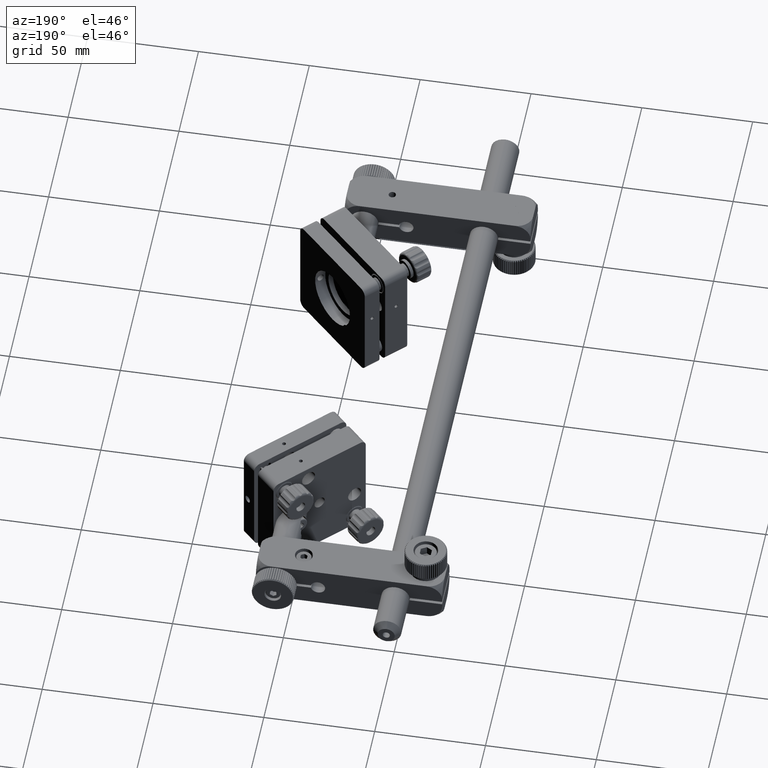
[diagram: clean part render]
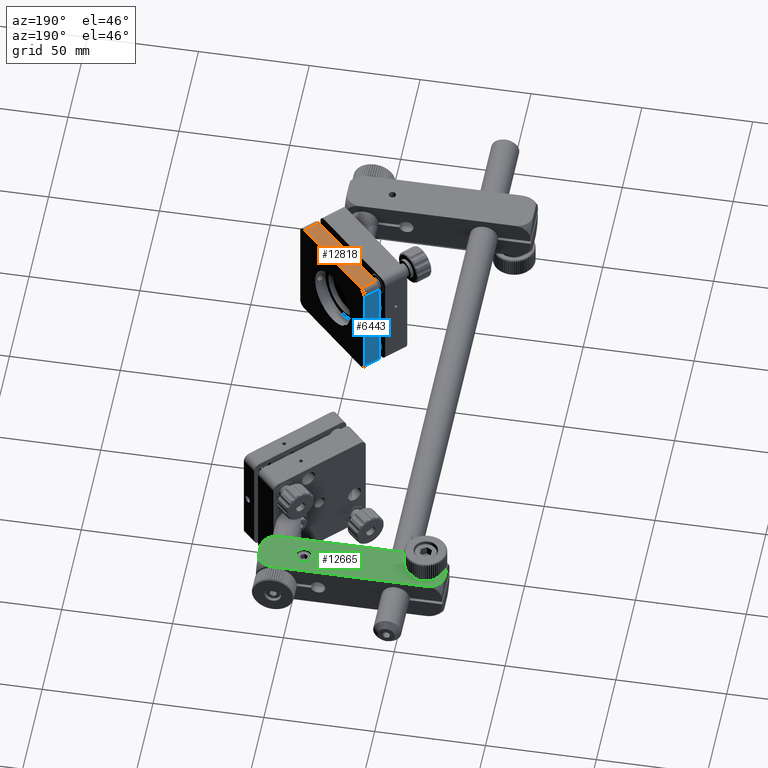
[diagram: same view with three faces highlighted in distinct colors, each labeled with its STEP entity id]
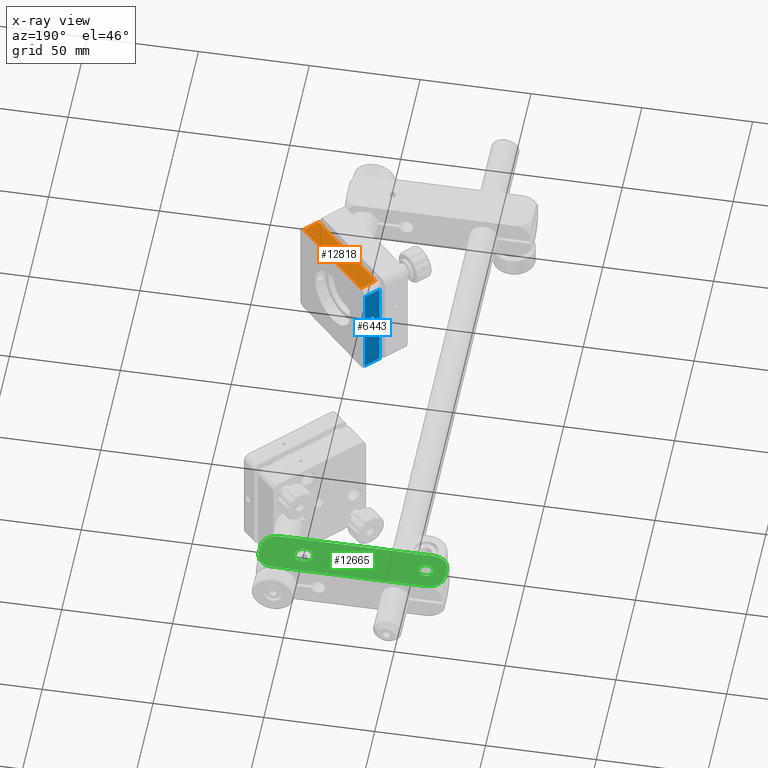
[diagram: x-ray of the same camera — body ghosted, the three highlighted faces saturated]
A machine part, auxiliary view with three faces highlighted in distinct colors.
The next image is the same camera in x-ray (body ghosted, the three faces saturated) — at least one of them is partly hidden behind the body in this view.
Their STEP definitions:

[orange] entity #12818 — the highlighted planar face has unit normal (-0, -0, 1).
#633 = CARTESIAN_POINT ( 'NONE',  ( 75.19572218962657928, 103.9577228555257307, 25.00000000000043698 ) ) ;
#3903 = VECTOR ( 'NONE', #49244, 1000.000000000000000 ) ;
#5757 = DIRECTION ( 'NONE',  ( -0.7071067811865522357, 0.7071067811865429098, 2.642727309353121971E-16 ) ) ;
#10299 = DIRECTION ( 'NONE',  ( -1.771697125267998039E-17, -3.914550515067769939E-16, 1.000000000000000000 ) ) ;
#11944 = VECTOR ( 'NONE', #62784, 1000.000000000000000 ) ;
#12818 = ADVANCED_FACE ( 'NONE', ( #48357 ), #62748, .T. ) ;
#13553 = VERTEX_POINT ( 'NONE', #49929 ) ;
#16231 = VECTOR ( 'NONE', #5757, 1000.000000000000000 ) ;
#18662 = CARTESIAN_POINT ( 'NONE',  ( 75.19572218962657928, 103.9577228555257307, 25.00000000000043698 ) ) ;
#20908 = EDGE_LOOP ( 'NONE', ( #35915, #30488, #62858, #43851 ) ) ;
#22166 = CARTESIAN_POINT ( 'NONE',  ( 75.19572218962657928, 103.9577228555257307, 25.00000000000043698 ) ) ;
#22609 = LINE ( 'NONE', #34031, #11944 ) ;
#28098 = LINE ( 'NONE', #32258, #51266 ) ;
#30488 = ORIENTED_EDGE ( 'NONE', *, *, #59668, .F. ) ;
#31096 = CARTESIAN_POINT ( 'NONE',  ( 44.08302381741828668, 135.0704212277335898, 25.00000000000046541 ) ) ;
#32258 = CARTESIAN_POINT ( 'NONE',  ( 75.19572218962657928, 103.9577228555257307, 25.00000000000043698 ) ) ;
#32473 = EDGE_CURVE ( 'NONE', #58717, #53738, #59758, .T. ) ;
#34031 = CARTESIAN_POINT ( 'NONE',  ( 44.08302381741828668, 135.0704212277335898, 25.00000000000046541 ) ) ;
#34866 = CARTESIAN_POINT ( 'NONE',  ( 69.53886794013429551, 98.30086860603333321, 25.00000000000043343 ) ) ;
#35915 = ORIENTED_EDGE ( 'NONE', *, *, #47294, .F. ) ;
#43567 = DIRECTION ( 'NONE',  ( -0.7071067811865522357, 0.7071067811865429098, 2.642727309353121971E-16 ) ) ;
#43851 = ORIENTED_EDGE ( 'NONE', *, *, #46413, .T. ) ;
#46413 = EDGE_CURVE ( 'NONE', #53738, #13553, #22609, .T. ) ;
#47294 = EDGE_CURVE ( 'NONE', #49089, #13553, #59476, .T. ) ;
#48135 = CARTESIAN_POINT ( 'NONE',  ( 69.53886794013429551, 98.30086860603333321, 25.00000000000043343 ) ) ;
#48357 = FACE_OUTER_BOUND ( 'NONE', #20908, .T. ) ;
#49089 = VERTEX_POINT ( 'NONE', #48135 ) ;
#49244 = DIRECTION ( 'NONE',  ( -0.7071067811865522357, 0.7071067811865429098, 2.642727309353121971E-16 ) ) ;
#49929 = CARTESIAN_POINT ( 'NONE',  ( 38.42616956792592475, 129.4135669782412492, 25.00000000000045119 ) ) ;
#51266 = VECTOR ( 'NONE', #52339, 1000.000000000000000 ) ;
#52339 = DIRECTION ( 'NONE',  ( -0.7071067811865445751, -0.7071067811865504593, -5.150960024595232098E-16 ) ) ;
#53738 = VERTEX_POINT ( 'NONE', #31096 ) ;
#58717 = VERTEX_POINT ( 'NONE', #22166 ) ;
#59476 = LINE ( 'NONE', #34866, #3903 ) ;
#59668 = EDGE_CURVE ( 'NONE', #58717, #49089, #28098, .T. ) ;
#59758 = LINE ( 'NONE', #633, #16231 ) ;
#61308 = AXIS2_PLACEMENT_3D ( 'NONE', #18662, #10299, #43567 ) ;
#62748 = PLANE ( 'NONE',  #61308 ) ;
#62784 = DIRECTION ( 'NONE',  ( -0.7071067811865445751, -0.7071067811865504593, -5.150960024595232098E-16 ) ) ;
#62858 = ORIENTED_EDGE ( 'NONE', *, *, #32473, .T. ) ;

[blue] entity #6443 — the highlighted planar face has unit normal (-0.7071, 0.7071, -0).
#119 = LINE ( 'NONE', #59217, #5952 ) ;
#176 = CARTESIAN_POINT ( 'NONE',  ( 41.96170347385857724, 137.1917415712933064, 22.00000000000041567 ) ) ;
#350 = CARTESIAN_POINT ( 'NONE',  ( 36.30484922436628636, 131.5348873218008521, 22.00000000000041211 ) ) ;
#792 = ORIENTED_EDGE ( 'NONE', *, *, #49133, .T. ) ;
#1411 = CARTESIAN_POINT ( 'NONE',  ( 36.30484922436627926, 131.5348873218008521, -21.99999999999959144 ) ) ;
#3682 = CARTESIAN_POINT ( 'NONE',  ( 41.96170347385858435, 137.1917415712933064, -21.99999999999958789 ) ) ;
#5952 = VECTOR ( 'NONE', #53462, 1000.000000000000000 ) ;
#6012 = FACE_OUTER_BOUND ( 'NONE', #16805, .T. ) ;
#6443 = ADVANCED_FACE ( 'NONE', ( #49782, #6012 ), #59056, .T. ) ;
#9781 = LINE ( 'NONE', #18768, #47992 ) ;
#10446 = CARTESIAN_POINT ( 'NONE',  ( 41.96170347385857724, 137.1917415712933064, 22.00000000000041567 ) ) ;
#11141 = AXIS2_PLACEMENT_3D ( 'NONE', #41636, #37165, #36527 ) ;
#11728 = ORIENTED_EDGE ( 'NONE', *, *, #19589, .F. ) ;
#13213 = AXIS2_PLACEMENT_3D ( 'NONE', #10446, #31225, #15897 ) ;
#13946 = DIRECTION ( 'NONE',  ( 2.067572776979225912E-16, 2.024147450615368976E-16, -1.000000000000000000 ) ) ;
#15897 = DIRECTION ( 'NONE',  ( 2.067572776979225912E-16, 2.024147450615368976E-16, -1.000000000000000000 ) ) ;
#15952 = EDGE_CURVE ( 'NONE', #33709, #55278, #34037, .T. ) ;
#16197 = CARTESIAN_POINT ( 'NONE',  ( 39.73431711312097292, 134.9643552105556523, 6.000000000000453859 ) ) ;
#16805 = EDGE_LOOP ( 'NONE', ( #11728, #18549, #792, #60750 ) ) ;
#17656 = VECTOR ( 'NONE', #34664, 1000.000000000000000 ) ;
#18549 = ORIENTED_EDGE ( 'NONE', *, *, #15952, .F. ) ;
#18768 = CARTESIAN_POINT ( 'NONE',  ( 41.96170347385857724, 137.1917415712933064, 22.00000000000041567 ) ) ;
#19337 = CIRCLE ( 'NONE', #11141, 0.8500000000000146327 ) ;
#19589 = EDGE_CURVE ( 'NONE', #55278, #48121, #119, .T. ) ;
#21061 = CIRCLE ( 'NONE', #27169, 0.8500000000000146327 ) ;
#22797 = CARTESIAN_POINT ( 'NONE',  ( 38.53223558510384095, 133.7622736825385061, 6.000000000000452083 ) ) ;
#23519 = LINE ( 'NONE', #37314, #47905 ) ;
#23802 = CARTESIAN_POINT ( 'NONE',  ( 41.96170347385857724, 137.1917415712933064, 22.00000000000041567 ) ) ;
#27169 = AXIS2_PLACEMENT_3D ( 'NONE', #30084, #29745, #53708 ) ;
#27559 = VERTEX_POINT ( 'NONE', #3682 ) ;
#29745 = DIRECTION ( 'NONE',  ( -0.7071067811865522357, 0.7071067811865429098, 4.219748651150221749E-16 ) ) ;
#30084 = CARTESIAN_POINT ( 'NONE',  ( 39.13327634911240693, 134.3633144465470934, 6.000000000000452971 ) ) ;
#31225 = DIRECTION ( 'NONE',  ( -0.7071067811865522357, 0.7071067811865429098, -3.070634274714137300E-18 ) ) ;
#33709 = VERTEX_POINT ( 'NONE', #176 ) ;
#34037 = LINE ( 'NONE', #23802, #17656 ) ;
#34664 = DIRECTION ( 'NONE',  ( -0.7071067811865445751, -0.7071067811865504593, -5.150960024595232098E-16 ) ) ;
#36527 = DIRECTION ( 'NONE',  ( 0.7071067811865475727, 0.7071067811865475727, 1.020425574103986644E-15 ) ) ;
#37165 = DIRECTION ( 'NONE',  ( -0.7071067811865522357, 0.7071067811865429098, 4.219748651150221749E-16 ) ) ;
#37314 = CARTESIAN_POINT ( 'NONE',  ( 41.96170347385858435, 137.1917415712933064, -21.99999999999958789 ) ) ;
#38429 = VERTEX_POINT ( 'NONE', #22797 ) ;
#39614 = VERTEX_POINT ( 'NONE', #16197 ) ;
#41636 = CARTESIAN_POINT ( 'NONE',  ( 39.13327634911240693, 134.3633144465470934, 6.000000000000452971 ) ) ;
#42658 = ORIENTED_EDGE ( 'NONE', *, *, #62797, .F. ) ;
#47905 = VECTOR ( 'NONE', #62521, 1000.000000000000000 ) ;
#47992 = VECTOR ( 'NONE', #13946, 1000.000000000000000 ) ;
#48047 = EDGE_CURVE ( 'NONE', #27559, #48121, #23519, .T. ) ;
#48121 = VERTEX_POINT ( 'NONE', #1411 ) ;
#48195 = EDGE_CURVE ( 'NONE', #38429, #39614, #19337, .T. ) ;
#49133 = EDGE_CURVE ( 'NONE', #33709, #27559, #9781, .T. ) ;
#49782 = FACE_BOUND ( 'NONE', #50198, .T. ) ;
#50198 = EDGE_LOOP ( 'NONE', ( #42658, #61759 ) ) ;
#53462 = DIRECTION ( 'NONE',  ( 2.067572776979225912E-16, 2.024147450615368976E-16, -1.000000000000000000 ) ) ;
#53708 = DIRECTION ( 'NONE',  ( 0.7071067811865475727, 0.7071067811865475727, 1.020425574103986644E-15 ) ) ;
#55278 = VERTEX_POINT ( 'NONE', #350 ) ;
#59056 = PLANE ( 'NONE',  #13213 ) ;
#59217 = CARTESIAN_POINT ( 'NONE',  ( 36.30484922436628636, 131.5348873218008521, 22.00000000000041211 ) ) ;
#60750 = ORIENTED_EDGE ( 'NONE', *, *, #48047, .T. ) ;
#61759 = ORIENTED_EDGE ( 'NONE', *, *, #48195, .F. ) ;
#62521 = DIRECTION ( 'NONE',  ( -0.7071067811865445751, -0.7071067811865504593, -5.150960024595232098E-16 ) ) ;
#62797 = EDGE_CURVE ( 'NONE', #39614, #38429, #21061, .T. ) ;

[green] entity #12665 — the highlighted planar face has unit normal (-0, 0, 1).
#68 = DIRECTION ( 'NONE',  ( 1.000000000000000000, 0.000000000000000000, 0.000000000000000000 ) ) ;
#232 = ORIENTED_EDGE ( 'NONE', *, *, #3763, .F. ) ;
#959 = VERTEX_POINT ( 'NONE', #10046 ) ;
#1125 = ORIENTED_EDGE ( 'NONE', *, *, #3347, .T. ) ;
#1499 = CARTESIAN_POINT ( 'NONE',  ( -15.24999999999968914, 287.0265331105718474, 9.499999999999939604 ) ) ;
#2335 = CIRCLE ( 'NONE', #36006, 3.249999999999997780 ) ;
#3320 = CARTESIAN_POINT ( 'NONE',  ( -20.99999999999968736, 277.5265331105718474, 9.499999999999939604 ) ) ;
#3347 = EDGE_CURVE ( 'NONE', #14189, #61701, #32255, .T. ) ;
#3763 = EDGE_CURVE ( 'NONE', #51060, #41477, #13840, .T. ) ;
#4606 = DIRECTION ( 'NONE',  ( -2.465190328815663534E-32, 2.958228394578796022E-31, 1.000000000000000000 ) ) ;
#5110 = CIRCLE ( 'NONE', #39809, 7.071067811865491493 ) ;
#5956 = EDGE_CURVE ( 'NONE', #45960, #8759, #27892, .T. ) ;
#6364 = EDGE_LOOP ( 'NONE', ( #23512, #20063, #11733, #26818, #1125, #28185, #20581, #12676 ) ) ;
#6505 = LINE ( 'NONE', #15786, #37602 ) ;
#8759 = VERTEX_POINT ( 'NONE', #49246 ) ;
#9670 = CIRCLE ( 'NONE', #60704, 3.999999999999989786 ) ;
#10046 = CARTESIAN_POINT ( 'NONE',  ( -20.99999999999965539, 289.4554652987063719, 9.499999999999978684 ) ) ;
#10066 = VERTEX_POINT ( 'NONE', #34598 ) ;
#11733 = ORIENTED_EDGE ( 'NONE', *, *, #30660, .T. ) ;
#12186 = CARTESIAN_POINT ( 'NONE',  ( -20.99999999999968736, 296.5265331105718474, 9.499999999999944933 ) ) ;
#12561 = FACE_BOUND ( 'NONE', #58797, .T. ) ;
#12665 = ADVANCED_FACE ( 'NONE', ( #12561, #23127, #46761 ), #37531, .T. ) ;
#12676 = ORIENTED_EDGE ( 'NONE', *, *, #53822, .T. ) ;
#13840 = CIRCLE ( 'NONE', #16925, 3.249999999999997780 ) ;
#14189 = VERTEX_POINT ( 'NONE', #53521 ) ;
#14699 = CARTESIAN_POINT ( 'NONE',  ( -20.99999999999961986, 284.5976009224373797, 9.500000000000019540 ) ) ;
#15786 = CARTESIAN_POINT ( 'NONE',  ( -20.99999999999968736, 296.5265331105718474, 9.499999999999944933 ) ) ;
#15830 = VECTOR ( 'NONE', #53297, 1000.000000000000000 ) ;
#15890 = EDGE_CURVE ( 'NONE', #41477, #51060, #2335, .T. ) ;
#16084 = DIRECTION ( 'NONE',  ( -4.299226218971816190E-31, -1.000000000000000000, -2.958228394578794270E-31 ) ) ;
#16551 = CARTESIAN_POINT ( 'NONE',  ( -13.92893218813417633, 284.5976009224373797, 9.499999999999939604 ) ) ;
#16925 = AXIS2_PLACEMENT_3D ( 'NONE', #57648, #4606, #23433 ) ;
#19343 = CARTESIAN_POINT ( 'NONE',  ( -11.99999999999968736, 287.0265331105718474, 9.499999999999939604 ) ) ;
#20027 = VERTEX_POINT ( 'NONE', #14699 ) ;
#20063 = ORIENTED_EDGE ( 'NONE', *, *, #60668, .T. ) ;
#20264 = DIRECTION ( 'NONE',  ( 1.000000000000000000, 0.000000000000000000, 0.000000000000000000 ) ) ;
#20347 = CARTESIAN_POINT ( 'NONE',  ( 63.00000000000014211, 289.4554652987063719, 9.500000000000014211 ) ) ;
#20581 = ORIENTED_EDGE ( 'NONE', *, *, #38368, .T. ) ;
#21109 = DIRECTION ( 'NONE',  ( 4.299226218971816190E-31, 1.000000000000000000, 2.958228394578794270E-31 ) ) ;
#21253 = EDGE_CURVE ( 'NONE', #61701, #38038, #5110, .T. ) ;
#21794 = DIRECTION ( 'NONE',  ( 1.000000000000000000, 0.000000000000000000, 0.000000000000000000 ) ) ;
#22060 = CARTESIAN_POINT ( 'NONE',  ( 55.92893218813471634, 296.5265331105718474, 9.499999999999939604 ) ) ;
#22353 = CARTESIAN_POINT ( 'NONE',  ( -13.92893218813417633, 289.4554652987063719, 9.499999999999944933 ) ) ;
#22446 = VECTOR ( 'NONE', #21109, 1000.000000000000000 ) ;
#22937 = AXIS2_PLACEMENT_3D ( 'NONE', #53789, #40410, #20264 ) ;
#23127 = FACE_BOUND ( 'NONE', #59962, .T. ) ;
#23433 = DIRECTION ( 'NONE',  ( 1.000000000000000000, 0.000000000000000000, 0.000000000000000000 ) ) ;
#23512 = ORIENTED_EDGE ( 'NONE', *, *, #5956, .T. ) ;
#23523 = AXIS2_PLACEMENT_3D ( 'NONE', #3320, #56997, #61800 ) ;
#23557 = CARTESIAN_POINT ( 'NONE',  ( 55.92893218813471634, 284.5976009224373797, 9.499999999999939604 ) ) ;
#24129 = DIRECTION ( 'NONE',  ( 1.000000000000000000, 0.000000000000000000, 0.000000000000000000 ) ) ;
#24202 = ORIENTED_EDGE ( 'NONE', *, *, #28249, .F. ) ;
#25485 = CARTESIAN_POINT ( 'NONE',  ( 47.00000000000024158, 287.0265331105718474, 9.499999999999939604 ) ) ;
#26818 = ORIENTED_EDGE ( 'NONE', *, *, #44546, .T. ) ;
#26929 = ORIENTED_EDGE ( 'NONE', *, *, #15890, .F. ) ;
#27892 = LINE ( 'NONE', #12186, #42700 ) ;
#28185 = ORIENTED_EDGE ( 'NONE', *, *, #21253, .T. ) ;
#28249 = EDGE_CURVE ( 'NONE', #50598, #10066, #9670, .T. ) ;
#29953 = CIRCLE ( 'NONE', #37116, 7.071067811865497710 ) ;
#30660 = EDGE_CURVE ( 'NONE', #959, #20027, #6505, .T. ) ;
#32255 = LINE ( 'NONE', #51727, #15830 ) ;
#32758 = DIRECTION ( 'NONE',  ( -2.465190328815663534E-32, 2.958228394578796022E-31, 1.000000000000000000 ) ) ;
#34598 = CARTESIAN_POINT ( 'NONE',  ( 39.00000000000025580, 287.0265331105718474, 9.499999999999939604 ) ) ;
#36006 = AXIS2_PLACEMENT_3D ( 'NONE', #19343, #32758, #24129 ) ;
#37116 = AXIS2_PLACEMENT_3D ( 'NONE', #22353, #41866, #56550 ) ;
#37531 = PLANE ( 'NONE',  #23523 ) ;
#37602 = VECTOR ( 'NONE', #16084, 1000.000000000000000 ) ;
#38038 = VERTEX_POINT ( 'NONE', #42239 ) ;
#38368 = EDGE_CURVE ( 'NONE', #38038, #49198, #45068, .T. ) ;
#39809 = AXIS2_PLACEMENT_3D ( 'NONE', #23557, #48490, #43073 ) ;
#40410 = DIRECTION ( 'NONE',  ( -2.465190328815663534E-32, 2.958228394578796022E-31, 1.000000000000000000 ) ) ;
#41227 = CIRCLE ( 'NONE', #57537, 7.071067811865491493 ) ;
#41477 = VERTEX_POINT ( 'NONE', #1499 ) ;
#41509 = AXIS2_PLACEMENT_3D ( 'NONE', #16551, #60670, #68 ) ;
#41866 = DIRECTION ( 'NONE',  ( -2.465190328815663534E-32, 2.958228394578796022E-31, 1.000000000000000000 ) ) ;
#42239 = CARTESIAN_POINT ( 'NONE',  ( 63.00000000000017053, 284.5976009224373797, 9.499999999999984013 ) ) ;
#42700 = VECTOR ( 'NONE', #47351, 1000.000000000000000 ) ;
#43073 = DIRECTION ( 'NONE',  ( 1.000000000000000000, 0.000000000000000000, 0.000000000000000000 ) ) ;
#44106 = EDGE_CURVE ( 'NONE', #10066, #50598, #55606, .T. ) ;
#44546 = EDGE_CURVE ( 'NONE', #20027, #14189, #53712, .T. ) ;
#45056 = CARTESIAN_POINT ( 'NONE',  ( 55.92893218813471634, 277.5265331105718474, 9.499999999999939604 ) ) ;
#45068 = LINE ( 'NONE', #60730, #22446 ) ;
#45960 = VERTEX_POINT ( 'NONE', #22060 ) ;
#46761 = FACE_OUTER_BOUND ( 'NONE', #6364, .T. ) ;
#47117 = ORIENTED_EDGE ( 'NONE', *, *, #44106, .F. ) ;
#47351 = DIRECTION ( 'NONE',  ( -1.000000000000000000, -4.303078078860594165E-31, -2.465190328815664081E-32 ) ) ;
#47622 = DIRECTION ( 'NONE',  ( 1.000000000000000000, 0.000000000000000000, 0.000000000000000000 ) ) ;
#47632 = CARTESIAN_POINT ( 'NONE',  ( -8.749999999999690914, 287.0265331105718474, 9.499999999999939604 ) ) ;
#48490 = DIRECTION ( 'NONE',  ( -2.465190328815663534E-32, 2.958228394578796022E-31, 1.000000000000000000 ) ) ;
#49198 = VERTEX_POINT ( 'NONE', #20347 ) ;
#49246 = CARTESIAN_POINT ( 'NONE',  ( -13.92893218813417633, 296.5265331105718474, 9.499999999999939604 ) ) ;
#50598 = VERTEX_POINT ( 'NONE', #25485 ) ;
#51060 = VERTEX_POINT ( 'NONE', #47632 ) ;
#51502 = CARTESIAN_POINT ( 'NONE',  ( 55.92893218813471634, 289.4554652987063719, 9.499999999999939604 ) ) ;
#51727 = CARTESIAN_POINT ( 'NONE',  ( -20.99999999999968736, 277.5265331105718474, 9.499999999999939604 ) ) ;
#53297 = DIRECTION ( 'NONE',  ( 1.000000000000000000, 4.303078078860594165E-31, 2.465190328815664081E-32 ) ) ;
#53351 = DIRECTION ( 'NONE',  ( -2.465190328815663534E-32, 2.958228394578796022E-31, 1.000000000000000000 ) ) ;
#53521 = CARTESIAN_POINT ( 'NONE',  ( -13.92893218813417633, 277.5265331105718474, 9.499999999999944933 ) ) ;
#53712 = CIRCLE ( 'NONE', #41509, 7.071067811865497710 ) ;
#53789 = CARTESIAN_POINT ( 'NONE',  ( 43.00000000000025580, 287.0265331105718474, 9.499999999999939604 ) ) ;
#53822 = EDGE_CURVE ( 'NONE', #49198, #45960, #41227, .T. ) ;
#55606 = CIRCLE ( 'NONE', #22937, 3.999999999999989786 ) ;
#56294 = DIRECTION ( 'NONE',  ( -2.465190328815663534E-32, 2.958228394578796022E-31, 1.000000000000000000 ) ) ;
#56550 = DIRECTION ( 'NONE',  ( 1.000000000000000000, 0.000000000000000000, 0.000000000000000000 ) ) ;
#56997 = DIRECTION ( 'NONE',  ( -2.465190328815663534E-32, 2.958228394578796460E-31, 1.000000000000000000 ) ) ;
#57537 = AXIS2_PLACEMENT_3D ( 'NONE', #51502, #56294, #21794 ) ;
#57648 = CARTESIAN_POINT ( 'NONE',  ( -11.99999999999968736, 287.0265331105718474, 9.499999999999939604 ) ) ;
#58164 = CARTESIAN_POINT ( 'NONE',  ( 43.00000000000025580, 287.0265331105718474, 9.499999999999939604 ) ) ;
#58797 = EDGE_LOOP ( 'NONE', ( #232, #26929 ) ) ;
#59962 = EDGE_LOOP ( 'NONE', ( #24202, #47117 ) ) ;
#60668 = EDGE_CURVE ( 'NONE', #8759, #959, #29953, .T. ) ;
#60670 = DIRECTION ( 'NONE',  ( -2.465190328815663534E-32, 2.958228394578796022E-31, 1.000000000000000000 ) ) ;
#60704 = AXIS2_PLACEMENT_3D ( 'NONE', #58164, #53351, #47622 ) ;
#60730 = CARTESIAN_POINT ( 'NONE',  ( 63.00000000000019185, 296.5265331105718474, 9.499999999999944933 ) ) ;
#61701 = VERTEX_POINT ( 'NONE', #45056 ) ;
#61800 = DIRECTION ( 'NONE',  ( 1.000000000000000000, 4.299226218971819693E-31, 2.465190328815663534E-32 ) ) ;